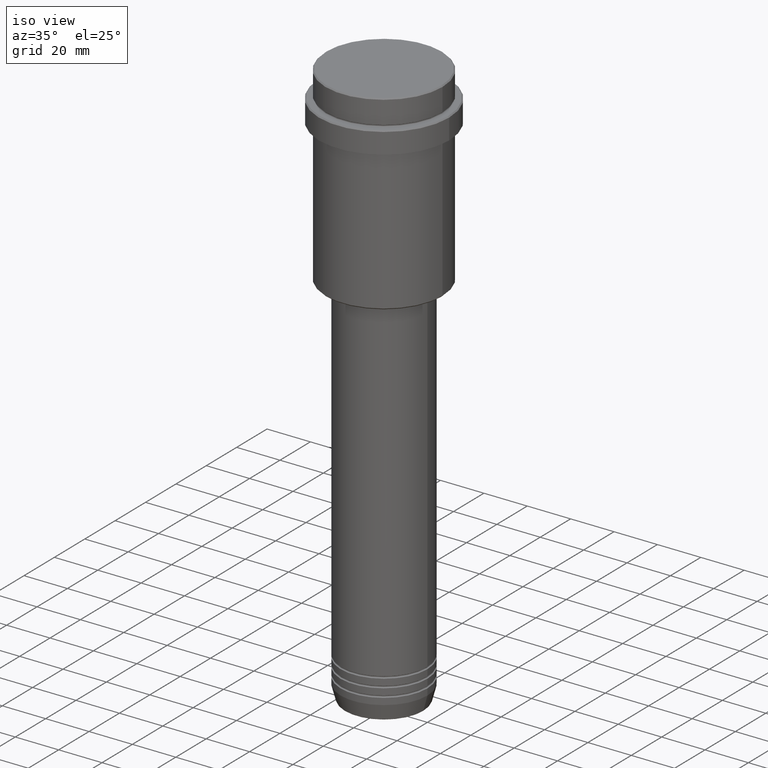
[diagram: clean part render]
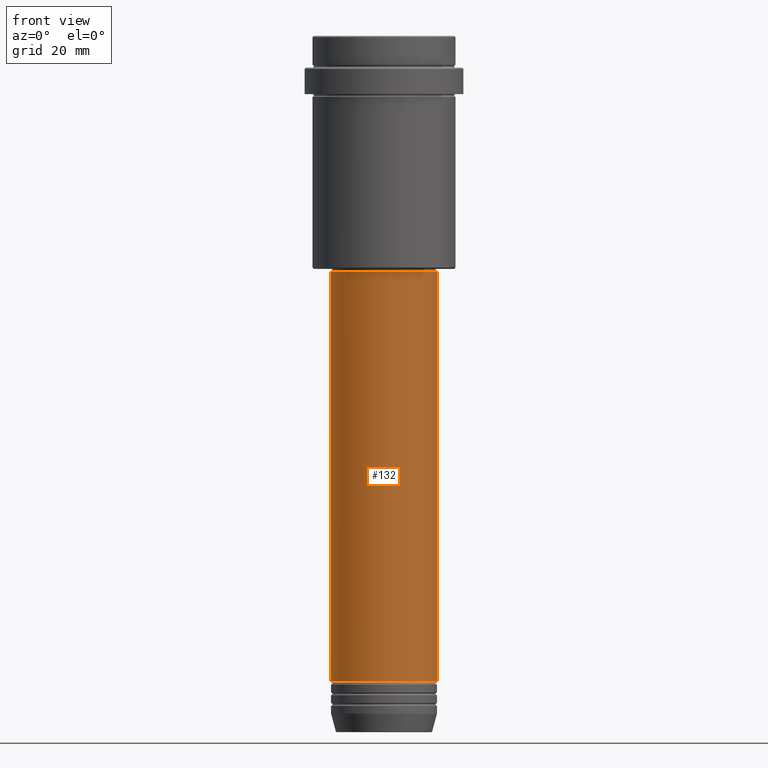
[diagram: tour spotlight — one face highlighted and labeled with its STEP entity id]
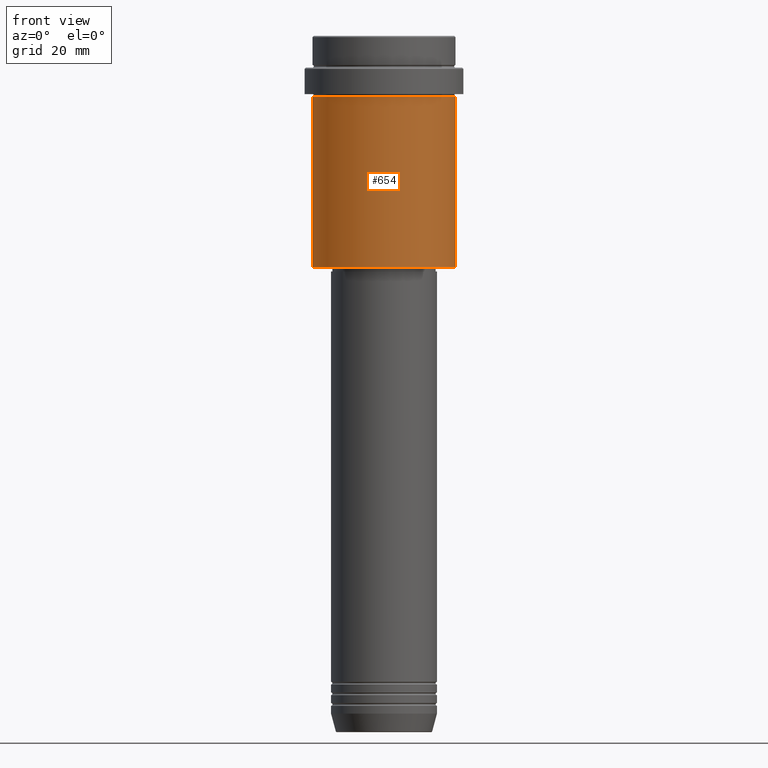
[diagram: tour spotlight — one face highlighted and labeled with its STEP entity id]
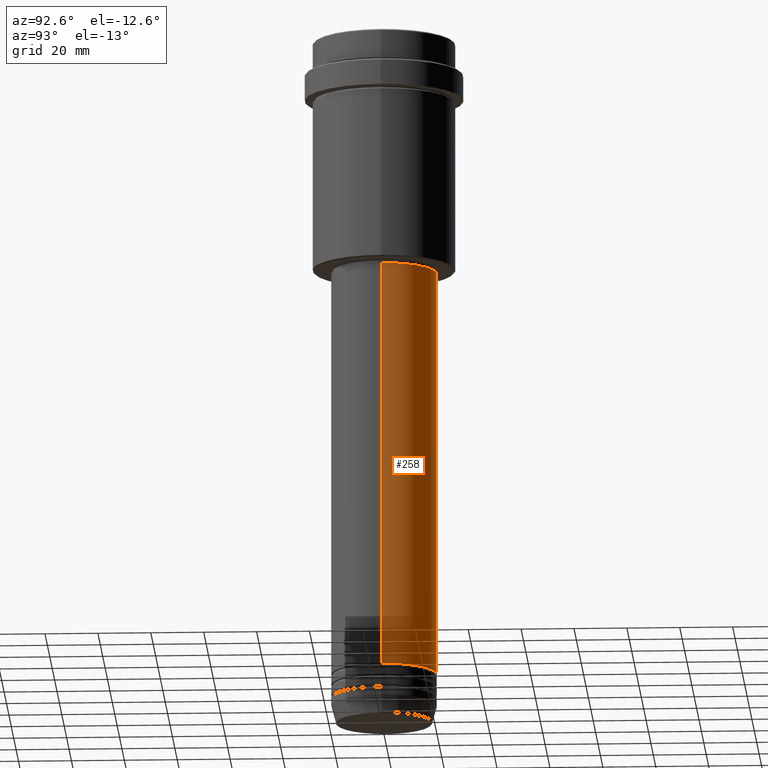
[diagram: tour spotlight — one face highlighted and labeled with its STEP entity id]
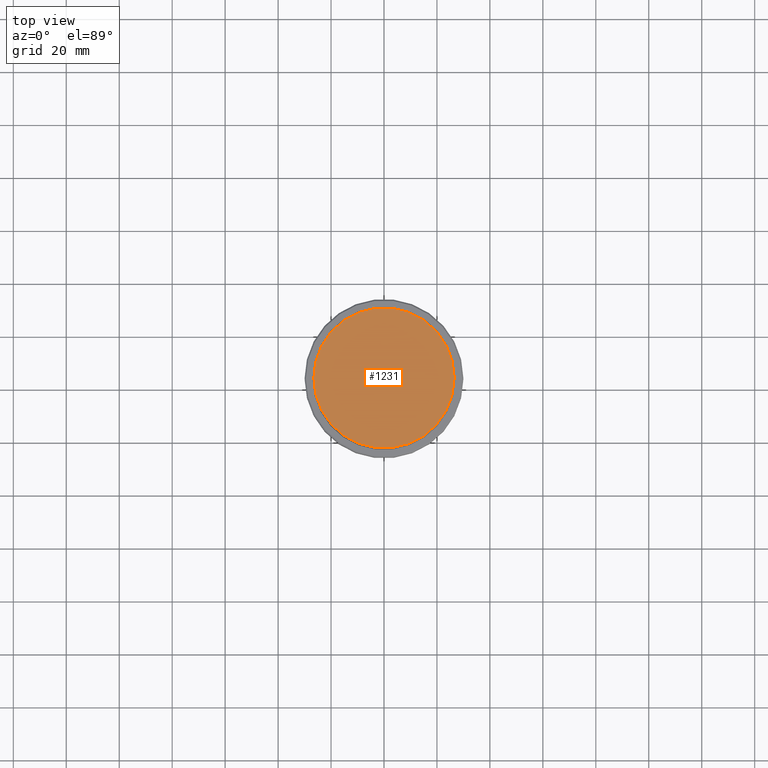
[diagram: tour spotlight — one face highlighted and labeled with its STEP entity id]
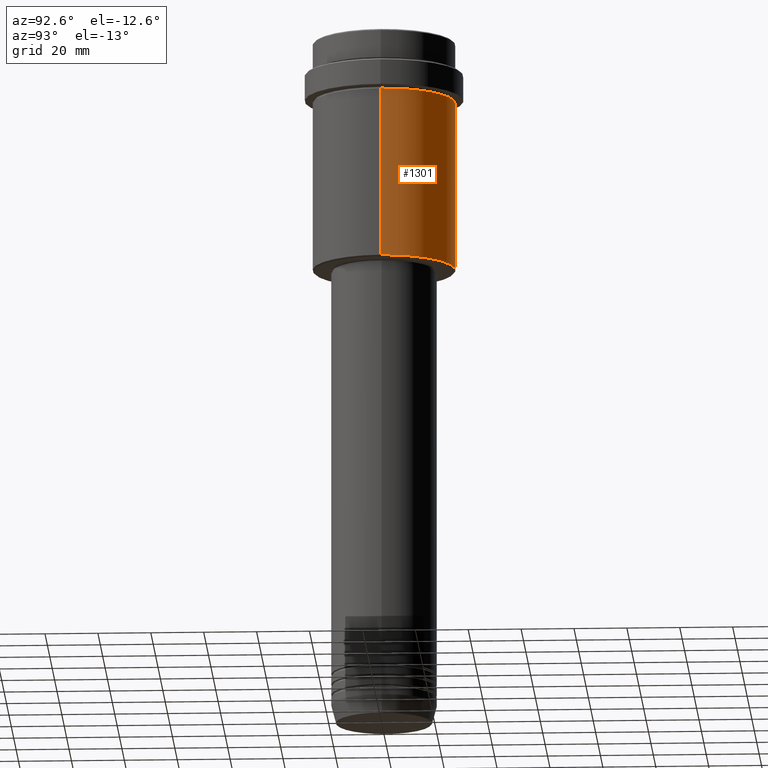
[diagram: tour spotlight — one face highlighted and labeled with its STEP entity id]
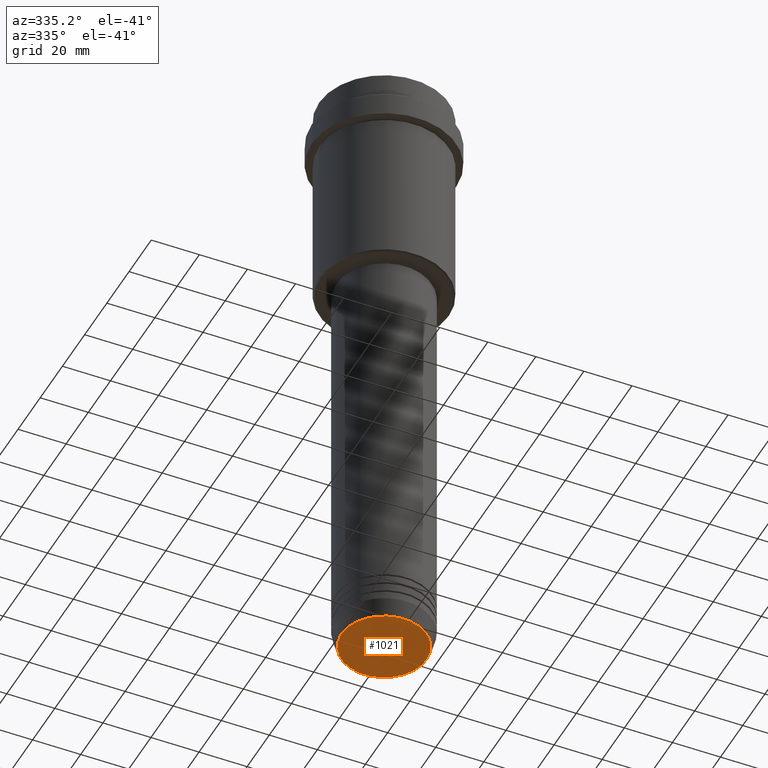
[diagram: tour spotlight — one face highlighted and labeled with its STEP entity id]
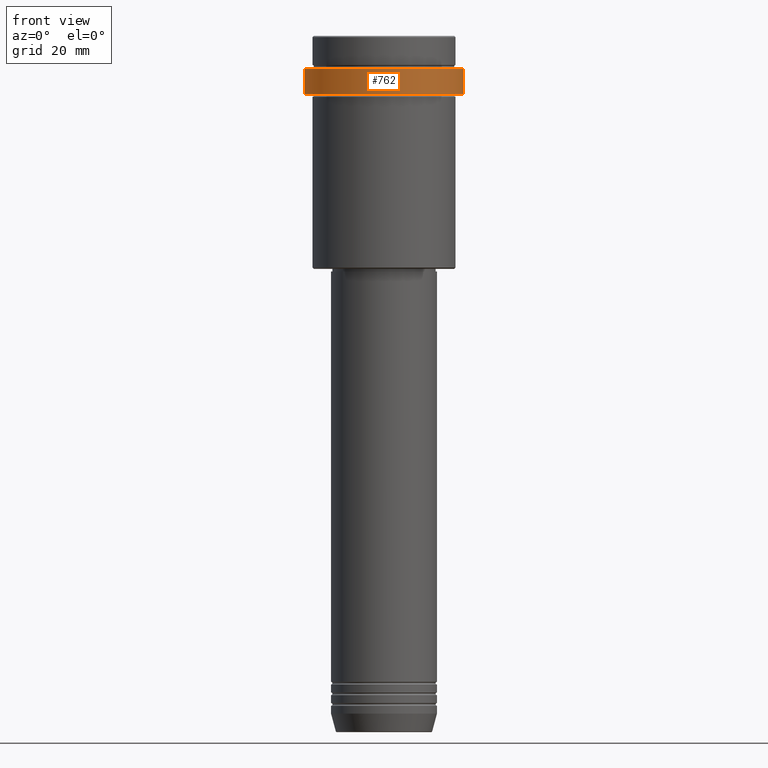
[diagram: tour spotlight — one face highlighted and labeled with its STEP entity id]
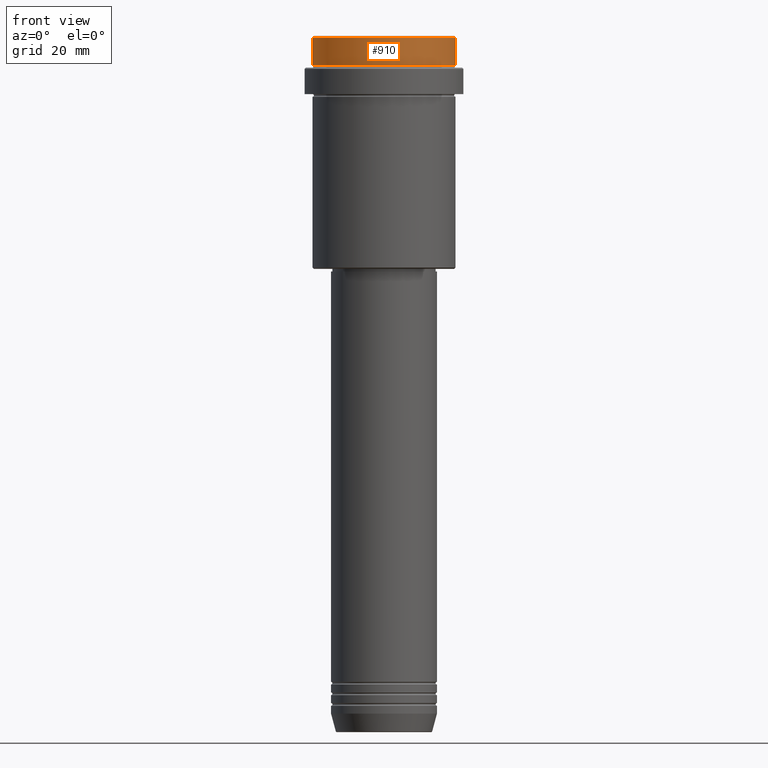
[diagram: tour spotlight — one face highlighted and labeled with its STEP entity id]
A machine part: a face-by-face anatomy tour. The part has 52 B-rep faces; the first image is the clean iso view, then the 8 largest visible faces are spotlighted one at a time (largest first), each with its STEP entity span.

Face 1 — front view, entity #132. In plain terms, the highlighted cylindrical surface (partial cylindrical patch) has radius 20 mm, axis along (-0, -0, 1).
Definition (entity closure, byte-faithful):
#49 = CARTESIAN_POINT ( 'NONE',  ( 0.000000000000000000, 0.000000000000000000, -243.9999999999998863 ) ) ;
#50 = EDGE_CURVE ( 'NONE', #919, #506, #1336, .T. ) ;
#103 = VERTEX_POINT ( 'NONE', #1127 ) ;
#132 = ADVANCED_FACE ( 'NONE', ( #188 ), #612, .T. ) ;
#188 = FACE_OUTER_BOUND ( 'NONE', #526, .T. ) ;
#337 = VECTOR ( 'NONE', #366, 1000.000000000000000 ) ;
#366 = DIRECTION ( 'NONE',  ( -0.000000000000000000, -0.000000000000000000, 1.000000000000000000 ) ) ;
#388 = CARTESIAN_POINT ( 'NONE',  ( 19.99999999999999645, 0.000000000000000000, 0.000000000000000000 ) ) ;
#455 = EDGE_CURVE ( 'NONE', #919, #103, #1104, .T. ) ;
#493 = CARTESIAN_POINT ( 'NONE',  ( -19.99999999999999645, 2.449293598294706119E-15, -89.00000000000002842 ) ) ;
#494 = AXIS2_PLACEMENT_3D ( 'NONE', #49, #1125, #1241 ) ;
#506 = VERTEX_POINT ( 'NONE', #493 ) ;
#526 = EDGE_LOOP ( 'NONE', ( #720, #782, #1310, #623 ) ) ;
#529 = DIRECTION ( 'NONE',  ( 1.000000000000000000, 0.000000000000000000, 0.000000000000000000 ) ) ;
#538 = AXIS2_PLACEMENT_3D ( 'NONE', #710, #845, #529 ) ;
#612 = CYLINDRICAL_SURFACE ( 'NONE', #538, 19.99999999999999645 ) ;
#623 = ORIENTED_EDGE ( 'NONE', *, *, #875, .F. ) ;
#686 = LINE ( 'NONE', #388, #838 ) ;
#689 = CARTESIAN_POINT ( 'NONE',  ( -19.99999999999999645, 2.449293598294706119E-15, 0.000000000000000000 ) ) ;
#710 = CARTESIAN_POINT ( 'NONE',  ( 0.000000000000000000, 0.000000000000000000, 0.000000000000000000 ) ) ;
#720 = ORIENTED_EDGE ( 'NONE', *, *, #50, .F. ) ;
#782 = ORIENTED_EDGE ( 'NONE', *, *, #455, .T. ) ;
#838 = VECTOR ( 'NONE', #1257, 1000.000000000000000 ) ;
#845 = DIRECTION ( 'NONE',  ( -0.000000000000000000, -0.000000000000000000, 1.000000000000000000 ) ) ;
#875 = EDGE_CURVE ( 'NONE', #506, #1197, #1015, .T. ) ;
#895 = CARTESIAN_POINT ( 'NONE',  ( 0.000000000000000000, 0.000000000000000000, -89.00000000000002842 ) ) ;
#919 = VERTEX_POINT ( 'NONE', #1116 ) ;
#983 = DIRECTION ( 'NONE',  ( -0.000000000000000000, -0.000000000000000000, 1.000000000000000000 ) ) ;
#993 = CARTESIAN_POINT ( 'NONE',  ( 19.99999999999999645, 0.000000000000000000, -89.00000000000002842 ) ) ;
#1015 = CIRCLE ( 'NONE', #1205, 19.99999999999999645 ) ;
#1104 = CIRCLE ( 'NONE', #494, 20.00000000000000000 ) ;
#1116 = CARTESIAN_POINT ( 'NONE',  ( -20.00000000000000000, 2.449293598294706513E-15, -243.9999999999998863 ) ) ;
#1125 = DIRECTION ( 'NONE',  ( -0.000000000000000000, -0.000000000000000000, 1.000000000000000000 ) ) ;
#1127 = CARTESIAN_POINT ( 'NONE',  ( 20.00000000000000000, 0.000000000000000000, -243.9999999999998863 ) ) ;
#1197 = VERTEX_POINT ( 'NONE', #993 ) ;
#1205 = AXIS2_PLACEMENT_3D ( 'NONE', #895, #983, #1249 ) ;
#1241 = DIRECTION ( 'NONE',  ( 1.000000000000000000, 0.000000000000000000, 0.000000000000000000 ) ) ;
#1249 = DIRECTION ( 'NONE',  ( 1.000000000000000000, 0.000000000000000000, 0.000000000000000000 ) ) ;
#1257 = DIRECTION ( 'NONE',  ( -0.000000000000000000, -0.000000000000000000, 1.000000000000000000 ) ) ;
#1310 = ORIENTED_EDGE ( 'NONE', *, *, #1364, .T. ) ;
#1336 = LINE ( 'NONE', #689, #337 ) ;
#1364 = EDGE_CURVE ( 'NONE', #103, #1197, #686, .T. ) ;

Face 2 — front view, entity #654. In plain terms, the highlighted cylindrical surface (partial cylindrical patch) has radius 27 mm, axis along (-0, -0, 1).
Definition (entity closure, byte-faithful):
#38 = EDGE_CURVE ( 'NONE', #1391, #1143, #891, .T. ) ;
#65 = CIRCLE ( 'NONE', #271, 26.99999999999999645 ) ;
#155 = CIRCLE ( 'NONE', #795, 26.99999999999999645 ) ;
#229 = DIRECTION ( 'NONE',  ( 1.000000000000000000, 0.000000000000000000, 0.000000000000000000 ) ) ;
#271 = AXIS2_PLACEMENT_3D ( 'NONE', #1192, #659, #229 ) ;
#294 = FACE_OUTER_BOUND ( 'NONE', #577, .T. ) ;
#297 = ORIENTED_EDGE ( 'NONE', *, *, #1165, .F. ) ;
#326 = CARTESIAN_POINT ( 'NONE',  ( 0.000000000000000000, 0.000000000000000000, 0.000000000000000000 ) ) ;
#336 = CARTESIAN_POINT ( 'NONE',  ( -26.99999999999999645, 3.306546357697853339E-15, -87.50000000000004263 ) ) ;
#391 = EDGE_CURVE ( 'NONE', #1184, #466, #870, .T. ) ;
#427 = ORIENTED_EDGE ( 'NONE', *, *, #38, .T. ) ;
#466 = VERTEX_POINT ( 'NONE', #1352 ) ;
#527 = DIRECTION ( 'NONE',  ( -0.000000000000000000, -0.000000000000000000, 1.000000000000000000 ) ) ;
#539 = CARTESIAN_POINT ( 'NONE',  ( -26.99999999999999645, 3.306546357697853339E-15, 0.000000000000000000 ) ) ;
#577 = EDGE_LOOP ( 'NONE', ( #948, #1282, #427, #297 ) ) ;
#597 = CARTESIAN_POINT ( 'NONE',  ( 26.99999999999999645, 0.000000000000000000, 0.000000000000000000 ) ) ;
#626 = CYLINDRICAL_SURFACE ( 'NONE', #772, 26.99999999999999645 ) ;
#654 = ADVANCED_FACE ( 'NONE', ( #294 ), #626, .T. ) ;
#655 = DIRECTION ( 'NONE',  ( -0.000000000000000000, -0.000000000000000000, 1.000000000000000000 ) ) ;
#659 = DIRECTION ( 'NONE',  ( -0.000000000000000000, -0.000000000000000000, 1.000000000000000000 ) ) ;
#667 = DIRECTION ( 'NONE',  ( -1.000000000000000000, 0.000000000000000000, 0.000000000000000000 ) ) ;
#676 = VECTOR ( 'NONE', #655, 1000.000000000000000 ) ;
#731 = DIRECTION ( 'NONE',  ( 1.000000000000000000, 0.000000000000000000, 0.000000000000000000 ) ) ;
#772 = AXIS2_PLACEMENT_3D ( 'NONE', #326, #527, #731 ) ;
#795 = AXIS2_PLACEMENT_3D ( 'NONE', #1321, #888, #667 ) ;
#870 = LINE ( 'NONE', #539, #676 ) ;
#888 = DIRECTION ( 'NONE',  ( -0.000000000000000000, -0.000000000000000000, 1.000000000000000000 ) ) ;
#891 = LINE ( 'NONE', #597, #1353 ) ;
#902 = CARTESIAN_POINT ( 'NONE',  ( 26.99999999999999645, 0.000000000000000000, -87.50000000000004263 ) ) ;
#906 = DIRECTION ( 'NONE',  ( -0.000000000000000000, -0.000000000000000000, 1.000000000000000000 ) ) ;
#948 = ORIENTED_EDGE ( 'NONE', *, *, #391, .F. ) ;
#1064 = CARTESIAN_POINT ( 'NONE',  ( 26.99999999999999645, 0.000000000000000000, -23.00000000000000000 ) ) ;
#1143 = VERTEX_POINT ( 'NONE', #1064 ) ;
#1165 = EDGE_CURVE ( 'NONE', #466, #1143, #65, .T. ) ;
#1184 = VERTEX_POINT ( 'NONE', #336 ) ;
#1192 = CARTESIAN_POINT ( 'NONE',  ( 0.000000000000000000, 0.000000000000000000, -23.00000000000000000 ) ) ;
#1212 = EDGE_CURVE ( 'NONE', #1184, #1391, #155, .T. ) ;
#1282 = ORIENTED_EDGE ( 'NONE', *, *, #1212, .T. ) ;
#1321 = CARTESIAN_POINT ( 'NONE',  ( 0.000000000000000000, 0.000000000000000000, -87.50000000000004263 ) ) ;
#1352 = CARTESIAN_POINT ( 'NONE',  ( -26.99999999999999645, 3.306546357697853339E-15, -23.00000000000000000 ) ) ;
#1353 = VECTOR ( 'NONE', #906, 1000.000000000000000 ) ;
#1391 = VERTEX_POINT ( 'NONE', #902 ) ;

Face 3 — auxiliary view, entity #258. In plain terms, the highlighted cylindrical surface (partial cylindrical patch) has radius 20 mm, axis along (-0, -0, 1).
Definition (entity closure, byte-faithful):
#4 = EDGE_CURVE ( 'NONE', #1197, #506, #57, .T. ) ;
#6 = DIRECTION ( 'NONE',  ( 1.000000000000000000, 0.000000000000000000, 0.000000000000000000 ) ) ;
#50 = EDGE_CURVE ( 'NONE', #919, #506, #1336, .T. ) ;
#57 = CIRCLE ( 'NONE', #1030, 19.99999999999999645 ) ;
#103 = VERTEX_POINT ( 'NONE', #1127 ) ;
#123 = DIRECTION ( 'NONE',  ( 1.000000000000000000, 0.000000000000000000, 0.000000000000000000 ) ) ;
#194 = FACE_OUTER_BOUND ( 'NONE', #775, .T. ) ;
#204 = DIRECTION ( 'NONE',  ( -0.000000000000000000, -0.000000000000000000, 1.000000000000000000 ) ) ;
#258 = ADVANCED_FACE ( 'NONE', ( #194 ), #635, .T. ) ;
#322 = ORIENTED_EDGE ( 'NONE', *, *, #4, .F. ) ;
#337 = VECTOR ( 'NONE', #366, 1000.000000000000000 ) ;
#366 = DIRECTION ( 'NONE',  ( -0.000000000000000000, -0.000000000000000000, 1.000000000000000000 ) ) ;
#388 = CARTESIAN_POINT ( 'NONE',  ( 19.99999999999999645, 0.000000000000000000, 0.000000000000000000 ) ) ;
#493 = CARTESIAN_POINT ( 'NONE',  ( -19.99999999999999645, 2.449293598294706119E-15, -89.00000000000002842 ) ) ;
#506 = VERTEX_POINT ( 'NONE', #493 ) ;
#541 = AXIS2_PLACEMENT_3D ( 'NONE', #1061, #204, #123 ) ;
#576 = CARTESIAN_POINT ( 'NONE',  ( 0.000000000000000000, 0.000000000000000000, -89.00000000000002842 ) ) ;
#635 = CYLINDRICAL_SURFACE ( 'NONE', #541, 19.99999999999999645 ) ;
#669 = CARTESIAN_POINT ( 'NONE',  ( 0.000000000000000000, 0.000000000000000000, -243.9999999999998863 ) ) ;
#674 = ORIENTED_EDGE ( 'NONE', *, *, #50, .T. ) ;
#677 = CIRCLE ( 'NONE', #1035, 20.00000000000000000 ) ;
#686 = LINE ( 'NONE', #388, #838 ) ;
#689 = CARTESIAN_POINT ( 'NONE',  ( -19.99999999999999645, 2.449293598294706119E-15, 0.000000000000000000 ) ) ;
#707 = ORIENTED_EDGE ( 'NONE', *, *, #779, .T. ) ;
#775 = EDGE_LOOP ( 'NONE', ( #707, #674, #322, #1299 ) ) ;
#779 = EDGE_CURVE ( 'NONE', #103, #919, #677, .T. ) ;
#838 = VECTOR ( 'NONE', #1257, 1000.000000000000000 ) ;
#913 = DIRECTION ( 'NONE',  ( -0.000000000000000000, -0.000000000000000000, 1.000000000000000000 ) ) ;
#919 = VERTEX_POINT ( 'NONE', #1116 ) ;
#977 = DIRECTION ( 'NONE',  ( -0.000000000000000000, -0.000000000000000000, 1.000000000000000000 ) ) ;
#993 = CARTESIAN_POINT ( 'NONE',  ( 19.99999999999999645, 0.000000000000000000, -89.00000000000002842 ) ) ;
#998 = DIRECTION ( 'NONE',  ( 1.000000000000000000, 0.000000000000000000, 0.000000000000000000 ) ) ;
#1030 = AXIS2_PLACEMENT_3D ( 'NONE', #576, #913, #998 ) ;
#1035 = AXIS2_PLACEMENT_3D ( 'NONE', #669, #977, #6 ) ;
#1061 = CARTESIAN_POINT ( 'NONE',  ( 0.000000000000000000, 0.000000000000000000, 0.000000000000000000 ) ) ;
#1116 = CARTESIAN_POINT ( 'NONE',  ( -20.00000000000000000, 2.449293598294706513E-15, -243.9999999999998863 ) ) ;
#1127 = CARTESIAN_POINT ( 'NONE',  ( 20.00000000000000000, 0.000000000000000000, -243.9999999999998863 ) ) ;
#1197 = VERTEX_POINT ( 'NONE', #993 ) ;
#1257 = DIRECTION ( 'NONE',  ( -0.000000000000000000, -0.000000000000000000, 1.000000000000000000 ) ) ;
#1299 = ORIENTED_EDGE ( 'NONE', *, *, #1364, .F. ) ;
#1336 = LINE ( 'NONE', #689, #337 ) ;
#1364 = EDGE_CURVE ( 'NONE', #103, #1197, #686, .T. ) ;

Face 4 — top view, entity #1231. In plain terms, the highlighted planar face has unit normal (0, -0, 1).
Definition (entity closure, byte-faithful):
#92 = CARTESIAN_POINT ( 'NONE',  ( -26.49999999999999645, 0.000000000000000000, 0.000000000000000000 ) ) ;
#179 = AXIS2_PLACEMENT_3D ( 'NONE', #999, #785, #564 ) ;
#184 = VERTEX_POINT ( 'NONE', #92 ) ;
#218 = DIRECTION ( 'NONE',  ( -0.000000000000000000, -0.000000000000000000, 1.000000000000000000 ) ) ;
#223 = AXIS2_PLACEMENT_3D ( 'NONE', #280, #1141, #1022 ) ;
#266 = AXIS2_PLACEMENT_3D ( 'NONE', #1298, #218, #321 ) ;
#280 = CARTESIAN_POINT ( 'NONE',  ( 0.000000000000000000, 0.000000000000000000, 0.000000000000000000 ) ) ;
#321 = DIRECTION ( 'NONE',  ( 1.000000000000000000, 0.000000000000000000, 0.000000000000000000 ) ) ;
#351 = PLANE ( 'NONE',  #179 ) ;
#362 = CIRCLE ( 'NONE', #223, 26.49999999999999645 ) ;
#371 = EDGE_CURVE ( 'NONE', #1004, #184, #1201, .T. ) ;
#434 = ORIENTED_EDGE ( 'NONE', *, *, #481, .T. ) ;
#481 = EDGE_CURVE ( 'NONE', #184, #1004, #362, .T. ) ;
#508 = ORIENTED_EDGE ( 'NONE', *, *, #371, .T. ) ;
#564 = DIRECTION ( 'NONE',  ( 1.000000000000000000, 0.000000000000000000, 0.000000000000000000 ) ) ;
#760 = FACE_OUTER_BOUND ( 'NONE', #1024, .T. ) ;
#785 = DIRECTION ( 'NONE',  ( 0.000000000000000000, -0.000000000000000000, 1.000000000000000000 ) ) ;
#830 = CARTESIAN_POINT ( 'NONE',  ( 26.49999999999999645, 3.275930187719169552E-15, 0.000000000000000000 ) ) ;
#999 = CARTESIAN_POINT ( 'NONE',  ( 0.000000000000000000, 0.000000000000000000, 0.000000000000000000 ) ) ;
#1004 = VERTEX_POINT ( 'NONE', #830 ) ;
#1022 = DIRECTION ( 'NONE',  ( 1.000000000000000000, 0.000000000000000000, 0.000000000000000000 ) ) ;
#1024 = EDGE_LOOP ( 'NONE', ( #434, #508 ) ) ;
#1141 = DIRECTION ( 'NONE',  ( -0.000000000000000000, -0.000000000000000000, 1.000000000000000000 ) ) ;
#1201 = CIRCLE ( 'NONE', #266, 26.49999999999999645 ) ;
#1231 = ADVANCED_FACE ( 'NONE', ( #760 ), #351, .T. ) ;
#1298 = CARTESIAN_POINT ( 'NONE',  ( 0.000000000000000000, 0.000000000000000000, 0.000000000000000000 ) ) ;

Face 5 — auxiliary view, entity #1301. In plain terms, the highlighted cylindrical surface (partial cylindrical patch) has radius 27 mm, axis along (-0, -0, 1).
Definition (entity closure, byte-faithful):
#1 = DIRECTION ( 'NONE',  ( 1.000000000000000000, 0.000000000000000000, 0.000000000000000000 ) ) ;
#8 = DIRECTION ( 'NONE',  ( -0.000000000000000000, -0.000000000000000000, 1.000000000000000000 ) ) ;
#23 = FACE_OUTER_BOUND ( 'NONE', #554, .T. ) ;
#38 = EDGE_CURVE ( 'NONE', #1391, #1143, #891, .T. ) ;
#42 = CARTESIAN_POINT ( 'NONE',  ( 0.000000000000000000, 0.000000000000000000, -87.50000000000004263 ) ) ;
#47 = DIRECTION ( 'NONE',  ( -0.000000000000000000, -0.000000000000000000, 1.000000000000000000 ) ) ;
#141 = CYLINDRICAL_SURFACE ( 'NONE', #320, 26.99999999999999645 ) ;
#320 = AXIS2_PLACEMENT_3D ( 'NONE', #789, #1227, #683 ) ;
#336 = CARTESIAN_POINT ( 'NONE',  ( -26.99999999999999645, 3.306546357697853339E-15, -87.50000000000004263 ) ) ;
#338 = CIRCLE ( 'NONE', #1223, 26.99999999999999645 ) ;
#391 = EDGE_CURVE ( 'NONE', #1184, #466, #870, .T. ) ;
#400 = EDGE_CURVE ( 'NONE', #1143, #466, #338, .T. ) ;
#466 = VERTEX_POINT ( 'NONE', #1352 ) ;
#478 = ORIENTED_EDGE ( 'NONE', *, *, #400, .F. ) ;
#539 = CARTESIAN_POINT ( 'NONE',  ( -26.99999999999999645, 3.306546357697853339E-15, 0.000000000000000000 ) ) ;
#554 = EDGE_LOOP ( 'NONE', ( #1166, #1376, #478, #657 ) ) ;
#597 = CARTESIAN_POINT ( 'NONE',  ( 26.99999999999999645, 0.000000000000000000, 0.000000000000000000 ) ) ;
#655 = DIRECTION ( 'NONE',  ( -0.000000000000000000, -0.000000000000000000, 1.000000000000000000 ) ) ;
#657 = ORIENTED_EDGE ( 'NONE', *, *, #38, .F. ) ;
#663 = AXIS2_PLACEMENT_3D ( 'NONE', #42, #47, #1026 ) ;
#676 = VECTOR ( 'NONE', #655, 1000.000000000000000 ) ;
#683 = DIRECTION ( 'NONE',  ( 1.000000000000000000, 0.000000000000000000, 0.000000000000000000 ) ) ;
#789 = CARTESIAN_POINT ( 'NONE',  ( 0.000000000000000000, 0.000000000000000000, 0.000000000000000000 ) ) ;
#870 = LINE ( 'NONE', #539, #676 ) ;
#891 = LINE ( 'NONE', #597, #1353 ) ;
#902 = CARTESIAN_POINT ( 'NONE',  ( 26.99999999999999645, 0.000000000000000000, -87.50000000000004263 ) ) ;
#906 = DIRECTION ( 'NONE',  ( -0.000000000000000000, -0.000000000000000000, 1.000000000000000000 ) ) ;
#1026 = DIRECTION ( 'NONE',  ( -1.000000000000000000, 0.000000000000000000, 0.000000000000000000 ) ) ;
#1064 = CARTESIAN_POINT ( 'NONE',  ( 26.99999999999999645, 0.000000000000000000, -23.00000000000000000 ) ) ;
#1083 = CARTESIAN_POINT ( 'NONE',  ( 0.000000000000000000, 0.000000000000000000, -23.00000000000000000 ) ) ;
#1143 = VERTEX_POINT ( 'NONE', #1064 ) ;
#1166 = ORIENTED_EDGE ( 'NONE', *, *, #1316, .T. ) ;
#1184 = VERTEX_POINT ( 'NONE', #336 ) ;
#1223 = AXIS2_PLACEMENT_3D ( 'NONE', #1083, #8, #1 ) ;
#1227 = DIRECTION ( 'NONE',  ( -0.000000000000000000, -0.000000000000000000, 1.000000000000000000 ) ) ;
#1271 = CIRCLE ( 'NONE', #663, 26.99999999999999645 ) ;
#1301 = ADVANCED_FACE ( 'NONE', ( #23 ), #141, .T. ) ;
#1316 = EDGE_CURVE ( 'NONE', #1391, #1184, #1271, .T. ) ;
#1352 = CARTESIAN_POINT ( 'NONE',  ( -26.99999999999999645, 3.306546357697853339E-15, -23.00000000000000000 ) ) ;
#1353 = VECTOR ( 'NONE', #906, 1000.000000000000000 ) ;
#1376 = ORIENTED_EDGE ( 'NONE', *, *, #391, .T. ) ;
#1391 = VERTEX_POINT ( 'NONE', #902 ) ;

Face 6 — auxiliary view, entity #1021. In plain terms, the highlighted planar face has unit normal (0, -0, 1).
Definition (entity closure, byte-faithful):
#129 = CARTESIAN_POINT ( 'NONE',  ( 17.74069215899265473, 0.000000000000000000, -263.0000000000000000 ) ) ;
#174 = CIRCLE ( 'NONE', #634, 17.74069215899265473 ) ;
#185 = CARTESIAN_POINT ( 'NONE',  ( 0.000000000000000000, 0.000000000000000000, -263.0000000000000000 ) ) ;
#256 = CARTESIAN_POINT ( 'NONE',  ( -17.74069215899265473, 2.202181136001357170E-15, -263.0000000000000000 ) ) ;
#282 = ORIENTED_EDGE ( 'NONE', *, *, #559, .T. ) ;
#283 = PLANE ( 'NONE',  #521 ) ;
#376 = CARTESIAN_POINT ( 'NONE',  ( 0.000000000000000000, 0.000000000000000000, -263.0000000000000000 ) ) ;
#421 = DIRECTION ( 'NONE',  ( 0.000000000000000000, -0.000000000000000000, 1.000000000000000000 ) ) ;
#430 = CIRCLE ( 'NONE', #726, 17.74069215899265473 ) ;
#442 = VERTEX_POINT ( 'NONE', #256 ) ;
#521 = AXIS2_PLACEMENT_3D ( 'NONE', #1404, #421, #624 ) ;
#559 = EDGE_CURVE ( 'NONE', #1229, #442, #174, .T. ) ;
#607 = DIRECTION ( 'NONE',  ( 0.000000000000000000, 0.000000000000000000, -1.000000000000000000 ) ) ;
#624 = DIRECTION ( 'NONE',  ( 1.000000000000000000, 0.000000000000000000, 0.000000000000000000 ) ) ;
#634 = AXIS2_PLACEMENT_3D ( 'NONE', #376, #607, #827 ) ;
#718 = FACE_OUTER_BOUND ( 'NONE', #791, .T. ) ;
#726 = AXIS2_PLACEMENT_3D ( 'NONE', #185, #1071, #963 ) ;
#740 = ORIENTED_EDGE ( 'NONE', *, *, #1112, .T. ) ;
#791 = EDGE_LOOP ( 'NONE', ( #282, #740 ) ) ;
#827 = DIRECTION ( 'NONE',  ( 1.000000000000000000, 0.000000000000000000, 0.000000000000000000 ) ) ;
#963 = DIRECTION ( 'NONE',  ( 1.000000000000000000, 0.000000000000000000, 0.000000000000000000 ) ) ;
#1021 = ADVANCED_FACE ( 'NONE', ( #718 ), #283, .F. ) ;
#1071 = DIRECTION ( 'NONE',  ( 0.000000000000000000, 0.000000000000000000, -1.000000000000000000 ) ) ;
#1112 = EDGE_CURVE ( 'NONE', #442, #1229, #430, .T. ) ;
#1229 = VERTEX_POINT ( 'NONE', #129 ) ;
#1404 = CARTESIAN_POINT ( 'NONE',  ( 0.000000000000000000, 0.000000000000000000, -263.0000000000000000 ) ) ;

Face 7 — front view, entity #762. In plain terms, the highlighted cylindrical surface (partial cylindrical patch) has radius 30 mm, axis along (-0, -0, 1).
Definition (entity closure, byte-faithful):
#17 = VERTEX_POINT ( 'NONE', #1009 ) ;
#56 = EDGE_CURVE ( 'NONE', #846, #17, #109, .T. ) ;
#100 = EDGE_LOOP ( 'NONE', ( #979, #168, #335, #300 ) ) ;
#109 = CIRCLE ( 'NONE', #151, 30.00000000000000000 ) ;
#151 = AXIS2_PLACEMENT_3D ( 'NONE', #354, #1345, #797 ) ;
#168 = ORIENTED_EDGE ( 'NONE', *, *, #460, .T. ) ;
#222 = CARTESIAN_POINT ( 'NONE',  ( 30.00000000000000000, 0.000000000000000000, -12.50000000000000888 ) ) ;
#242 = AXIS2_PLACEMENT_3D ( 'NONE', #721, #1028, #916 ) ;
#300 = ORIENTED_EDGE ( 'NONE', *, *, #56, .T. ) ;
#331 = DIRECTION ( 'NONE',  ( 1.000000000000000000, 0.000000000000000000, 0.000000000000000000 ) ) ;
#335 = ORIENTED_EDGE ( 'NONE', *, *, #1128, .T. ) ;
#340 = DIRECTION ( 'NONE',  ( -0.000000000000000000, -0.000000000000000000, 1.000000000000000000 ) ) ;
#354 = CARTESIAN_POINT ( 'NONE',  ( 0.000000000000000000, 0.000000000000000000, -12.50000000000000888 ) ) ;
#387 = VERTEX_POINT ( 'NONE', #649 ) ;
#428 = AXIS2_PLACEMENT_3D ( 'NONE', #653, #340, #331 ) ;
#460 = EDGE_CURVE ( 'NONE', #941, #387, #1292, .T. ) ;
#570 = VECTOR ( 'NONE', #847, 1000.000000000000000 ) ;
#582 = EDGE_CURVE ( 'NONE', #941, #17, #1057, .T. ) ;
#649 = CARTESIAN_POINT ( 'NONE',  ( 29.99999999999999645, 0.000000000000000000, -22.00000000000000355 ) ) ;
#653 = CARTESIAN_POINT ( 'NONE',  ( 0.000000000000000000, 0.000000000000000000, 0.000000000000000000 ) ) ;
#721 = CARTESIAN_POINT ( 'NONE',  ( 0.000000000000000000, 0.000000000000000000, -22.00000000000000355 ) ) ;
#762 = ADVANCED_FACE ( 'NONE', ( #1217 ), #874, .T. ) ;
#797 = DIRECTION ( 'NONE',  ( 1.000000000000000000, 0.000000000000000000, 0.000000000000000000 ) ) ;
#820 = CARTESIAN_POINT ( 'NONE',  ( -29.99999999999999645, 3.673940397442058389E-15, -22.00000000000000355 ) ) ;
#825 = LINE ( 'NONE', #1276, #570 ) ;
#835 = VECTOR ( 'NONE', #843, 1000.000000000000000 ) ;
#843 = DIRECTION ( 'NONE',  ( -0.000000000000000000, -0.000000000000000000, 1.000000000000000000 ) ) ;
#846 = VERTEX_POINT ( 'NONE', #222 ) ;
#847 = DIRECTION ( 'NONE',  ( -0.000000000000000000, -0.000000000000000000, 1.000000000000000000 ) ) ;
#874 = CYLINDRICAL_SURFACE ( 'NONE', #428, 30.00000000000000000 ) ;
#916 = DIRECTION ( 'NONE',  ( 1.000000000000000000, 0.000000000000000000, 0.000000000000000000 ) ) ;
#941 = VERTEX_POINT ( 'NONE', #820 ) ;
#979 = ORIENTED_EDGE ( 'NONE', *, *, #582, .F. ) ;
#1009 = CARTESIAN_POINT ( 'NONE',  ( -30.00000000000000000, 3.673940397442059178E-15, -12.50000000000000888 ) ) ;
#1028 = DIRECTION ( 'NONE',  ( -0.000000000000000000, -0.000000000000000000, 1.000000000000000000 ) ) ;
#1057 = LINE ( 'NONE', #1067, #835 ) ;
#1067 = CARTESIAN_POINT ( 'NONE',  ( -30.00000000000000000, 3.673940397442059178E-15, 0.000000000000000000 ) ) ;
#1128 = EDGE_CURVE ( 'NONE', #387, #846, #825, .T. ) ;
#1217 = FACE_OUTER_BOUND ( 'NONE', #100, .T. ) ;
#1276 = CARTESIAN_POINT ( 'NONE',  ( 30.00000000000000000, 0.000000000000000000, 0.000000000000000000 ) ) ;
#1292 = CIRCLE ( 'NONE', #242, 29.99999999999999645 ) ;
#1345 = DIRECTION ( 'NONE',  ( 0.000000000000000000, 0.000000000000000000, -1.000000000000000000 ) ) ;

Face 8 — front view, entity #910. In plain terms, the highlighted cylindrical surface (partial cylindrical patch) has radius 27 mm, axis along (-0, -0, 1).
Definition (entity closure, byte-faithful):
#16 = AXIS2_PLACEMENT_3D ( 'NONE', #1025, #1366, #158 ) ;
#63 = CARTESIAN_POINT ( 'NONE',  ( 0.000000000000000000, 0.000000000000000000, 0.000000000000000000 ) ) ;
#108 = DIRECTION ( 'NONE',  ( 1.000000000000000000, 0.000000000000000000, 0.000000000000000000 ) ) ;
#158 = DIRECTION ( 'NONE',  ( 1.000000000000000000, 0.000000000000000000, 0.000000000000000000 ) ) ;
#254 = DIRECTION ( 'NONE',  ( -0.000000000000000000, -0.000000000000000000, 1.000000000000000000 ) ) ;
#273 = FACE_OUTER_BOUND ( 'NONE', #1076, .T. ) ;
#306 = DIRECTION ( 'NONE',  ( -0.000000000000000000, -0.000000000000000000, 1.000000000000000000 ) ) ;
#328 = VERTEX_POINT ( 'NONE', #1309 ) ;
#356 = EDGE_CURVE ( 'NONE', #490, #328, #763, .T. ) ;
#379 = ORIENTED_EDGE ( 'NONE', *, *, #892, .T. ) ;
#448 = CARTESIAN_POINT ( 'NONE',  ( 0.000000000000000000, 0.000000000000000000, -0.5000000000000038858 ) ) ;
#457 = DIRECTION ( 'NONE',  ( 0.000000000000000000, 0.000000000000000000, -1.000000000000000000 ) ) ;
#482 = CARTESIAN_POINT ( 'NONE',  ( -26.99999999999999645, 3.306546357697853339E-15, -11.00000000000000178 ) ) ;
#490 = VERTEX_POINT ( 'NONE', #482 ) ;
#537 = CARTESIAN_POINT ( 'NONE',  ( 26.99999999999999645, 0.000000000000000000, -0.5000000000000038858 ) ) ;
#569 = AXIS2_PLACEMENT_3D ( 'NONE', #63, #254, #1020 ) ;
#637 = CIRCLE ( 'NONE', #750, 26.99999999999999645 ) ;
#672 = VERTEX_POINT ( 'NONE', #537 ) ;
#708 = CYLINDRICAL_SURFACE ( 'NONE', #569, 26.99999999999999645 ) ;
#750 = AXIS2_PLACEMENT_3D ( 'NONE', #448, #457, #108 ) ;
#763 = LINE ( 'NONE', #1396, #1010 ) ;
#774 = VECTOR ( 'NONE', #306, 1000.000000000000000 ) ;
#780 = ORIENTED_EDGE ( 'NONE', *, *, #1202, .T. ) ;
#849 = DIRECTION ( 'NONE',  ( -0.000000000000000000, -0.000000000000000000, 1.000000000000000000 ) ) ;
#867 = VERTEX_POINT ( 'NONE', #1328 ) ;
#892 = EDGE_CURVE ( 'NONE', #490, #867, #1270, .T. ) ;
#910 = ADVANCED_FACE ( 'NONE', ( #273 ), #708, .T. ) ;
#995 = ORIENTED_EDGE ( 'NONE', *, *, #1038, .T. ) ;
#1010 = VECTOR ( 'NONE', #849, 1000.000000000000000 ) ;
#1020 = DIRECTION ( 'NONE',  ( 1.000000000000000000, 0.000000000000000000, 0.000000000000000000 ) ) ;
#1025 = CARTESIAN_POINT ( 'NONE',  ( 0.000000000000000000, 0.000000000000000000, -11.00000000000000178 ) ) ;
#1038 = EDGE_CURVE ( 'NONE', #867, #672, #1167, .T. ) ;
#1049 = ORIENTED_EDGE ( 'NONE', *, *, #356, .F. ) ;
#1052 = CARTESIAN_POINT ( 'NONE',  ( 26.99999999999999645, 0.000000000000000000, 0.000000000000000000 ) ) ;
#1076 = EDGE_LOOP ( 'NONE', ( #1049, #379, #995, #780 ) ) ;
#1167 = LINE ( 'NONE', #1052, #774 ) ;
#1202 = EDGE_CURVE ( 'NONE', #672, #328, #637, .T. ) ;
#1270 = CIRCLE ( 'NONE', #16, 26.99999999999999645 ) ;
#1309 = CARTESIAN_POINT ( 'NONE',  ( -26.99999999999999645, 3.306546357697853339E-15, -0.5000000000000038858 ) ) ;
#1328 = CARTESIAN_POINT ( 'NONE',  ( 26.99999999999999645, 0.000000000000000000, -11.00000000000000178 ) ) ;
#1366 = DIRECTION ( 'NONE',  ( -0.000000000000000000, -0.000000000000000000, 1.000000000000000000 ) ) ;
#1396 = CARTESIAN_POINT ( 'NONE',  ( -26.99999999999999645, 3.306546357697853339E-15, 0.000000000000000000 ) ) ;